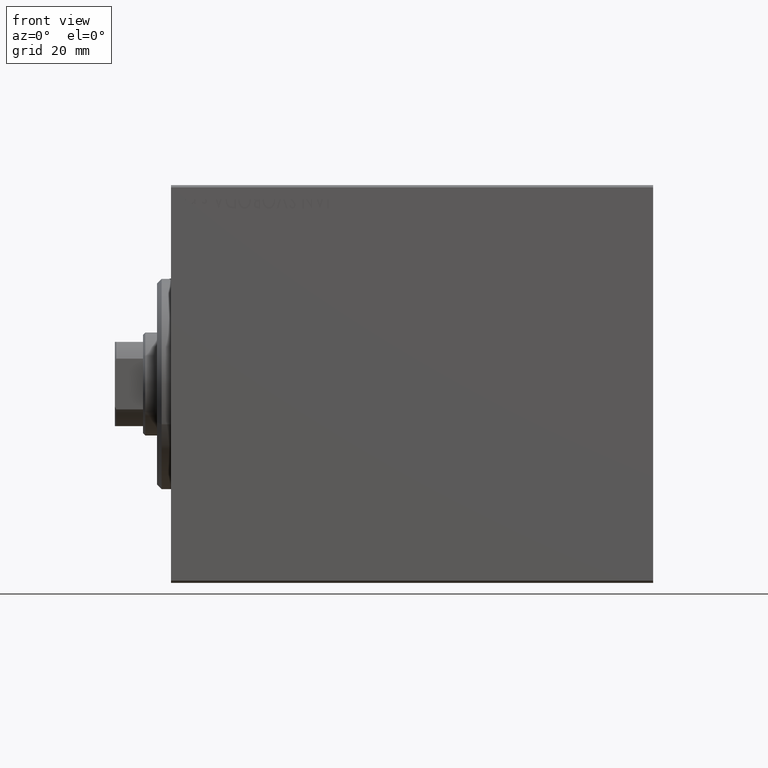
[diagram: clean part render]
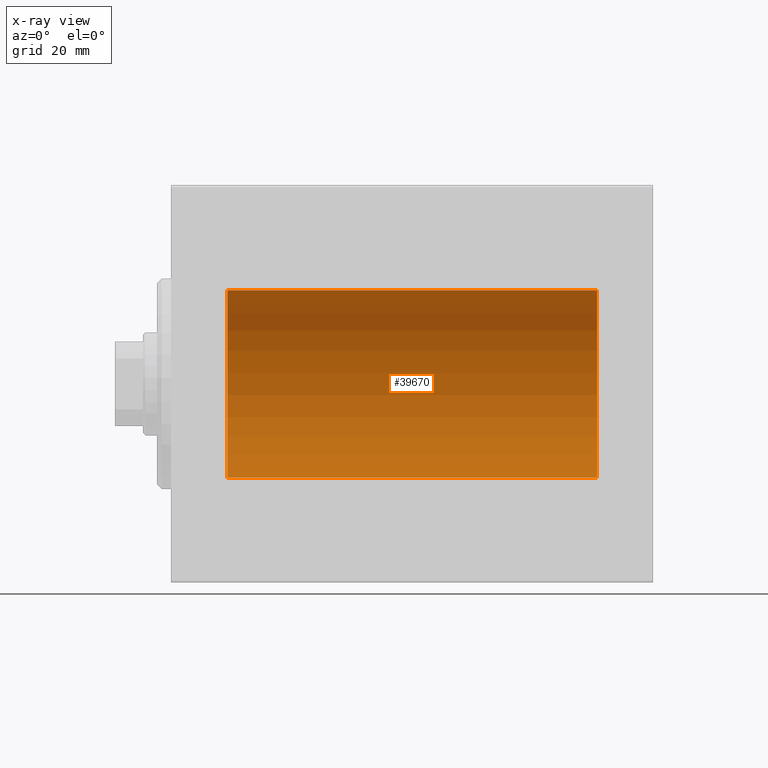
[diagram: x-ray — body ghosted, one internal face saturated and labeled with its STEP entity id]
A machine part, front view, then the same camera in x-ray: the body is ghosted and one INTERNAL B-rep face — a face not visible from any outside direction — is saturated and labeled: STEP entity #39670.
In plain terms, the highlighted cylindrical surface (partial cylindrical patch) has radius 20 mm, axis along (-1, -0, -0).
Its self-contained STEP definition (entity closure, byte-faithful):
#2766 = AXIS2_PLACEMENT_3D ( 'NONE', #43432, #33027, #6278 ) ;
#4284 = VERTEX_POINT ( 'NONE', #16832 ) ;
#4927 = ORIENTED_EDGE ( 'NONE', *, *, #20113, .F. ) ;
#6278 = DIRECTION ( 'NONE',  ( 0.000000000000000000, 0.000000000000000000, 1.000000000000000000 ) ) ;
#7004 = CIRCLE ( 'NONE', #2766, 20.00000000000000000 ) ;
#8414 = DIRECTION ( 'NONE',  ( -1.000000000000000000, 0.000000000000000000, 0.000000000000000000 ) ) ;
#8476 = LINE ( 'NONE', #27929, #18410 ) ;
#12069 = CARTESIAN_POINT ( 'NONE',  ( 91.00000000000000000, 0.000000000000000000, 0.000000000000000000 ) ) ;
#12285 = CYLINDRICAL_SURFACE ( 'NONE', #34040, 20.00000000000000000 ) ;
#12508 = DIRECTION ( 'NONE',  ( -1.000000000000000000, -0.000000000000000000, -0.000000000000000000 ) ) ;
#13866 = EDGE_CURVE ( 'NONE', #4284, #14616, #42696, .T. ) ;
#14616 = VERTEX_POINT ( 'NONE', #38494 ) ;
#15492 = DIRECTION ( 'NONE',  ( -1.000000000000000000, -0.000000000000000000, -0.000000000000000000 ) ) ;
#16751 = EDGE_CURVE ( 'NONE', #14616, #34661, #29523, .T. ) ;
#16832 = CARTESIAN_POINT ( 'NONE',  ( 91.00000000000000000, 0.000000000000000000, 20.00000000000000000 ) ) ;
#17541 = AXIS2_PLACEMENT_3D ( 'NONE', #31628, #8414, #39149 ) ;
#18410 = VECTOR ( 'NONE', #21953, 1000.000000000000000 ) ;
#20113 = EDGE_CURVE ( 'NONE', #4284, #40829, #7004, .T. ) ;
#21898 = CARTESIAN_POINT ( 'NONE',  ( 91.00000000000000000, 0.000000000000000000, 20.00000000000000000 ) ) ;
#21953 = DIRECTION ( 'NONE',  ( -1.000000000000000000, -0.000000000000000000, -0.000000000000000000 ) ) ;
#22449 = ORIENTED_EDGE ( 'NONE', *, *, #29913, .F. ) ;
#26188 = FACE_OUTER_BOUND ( 'NONE', #35906, .T. ) ;
#27929 = CARTESIAN_POINT ( 'NONE',  ( 91.00000000000000000, 2.449293598294706513E-15, -20.00000000000000000 ) ) ;
#29523 = CIRCLE ( 'NONE', #17541, 20.00000000000000000 ) ;
#29722 = DIRECTION ( 'NONE',  ( 0.000000000000000000, 0.000000000000000000, 1.000000000000000000 ) ) ;
#29913 = EDGE_CURVE ( 'NONE', #40829, #34661, #8476, .T. ) ;
#30726 = ORIENTED_EDGE ( 'NONE', *, *, #13866, .T. ) ;
#31628 = CARTESIAN_POINT ( 'NONE',  ( 11.99999999999999645, 0.000000000000000000, 0.000000000000000000 ) ) ;
#33027 = DIRECTION ( 'NONE',  ( -1.000000000000000000, 0.000000000000000000, 0.000000000000000000 ) ) ;
#34040 = AXIS2_PLACEMENT_3D ( 'NONE', #12069, #12508, #29722 ) ;
#34345 = ORIENTED_EDGE ( 'NONE', *, *, #16751, .T. ) ;
#34661 = VERTEX_POINT ( 'NONE', #42002 ) ;
#35906 = EDGE_LOOP ( 'NONE', ( #22449, #4927, #30726, #34345 ) ) ;
#37892 = VECTOR ( 'NONE', #15492, 1000.000000000000000 ) ;
#38494 = CARTESIAN_POINT ( 'NONE',  ( 11.99999999999999645, 0.000000000000000000, 20.00000000000000000 ) ) ;
#39016 = CARTESIAN_POINT ( 'NONE',  ( 91.00000000000000000, 2.449293598294706513E-15, -20.00000000000000000 ) ) ;
#39149 = DIRECTION ( 'NONE',  ( 0.000000000000000000, 0.000000000000000000, 1.000000000000000000 ) ) ;
#39670 = ADVANCED_FACE ( 'NONE', ( #26188 ), #12285, .F. ) ;
#40829 = VERTEX_POINT ( 'NONE', #39016 ) ;
#42002 = CARTESIAN_POINT ( 'NONE',  ( 11.99999999999999645, 2.449293598294706513E-15, -20.00000000000000000 ) ) ;
#42696 = LINE ( 'NONE', #21898, #37892 ) ;
#43432 = CARTESIAN_POINT ( 'NONE',  ( 91.00000000000000000, 0.000000000000000000, 0.000000000000000000 ) ) ;